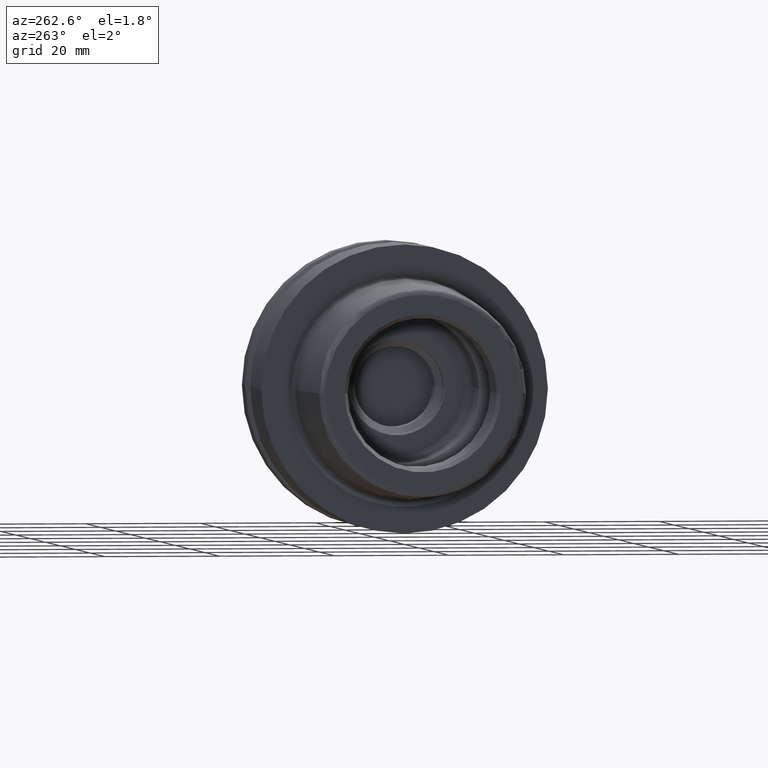
[diagram: clean part render]
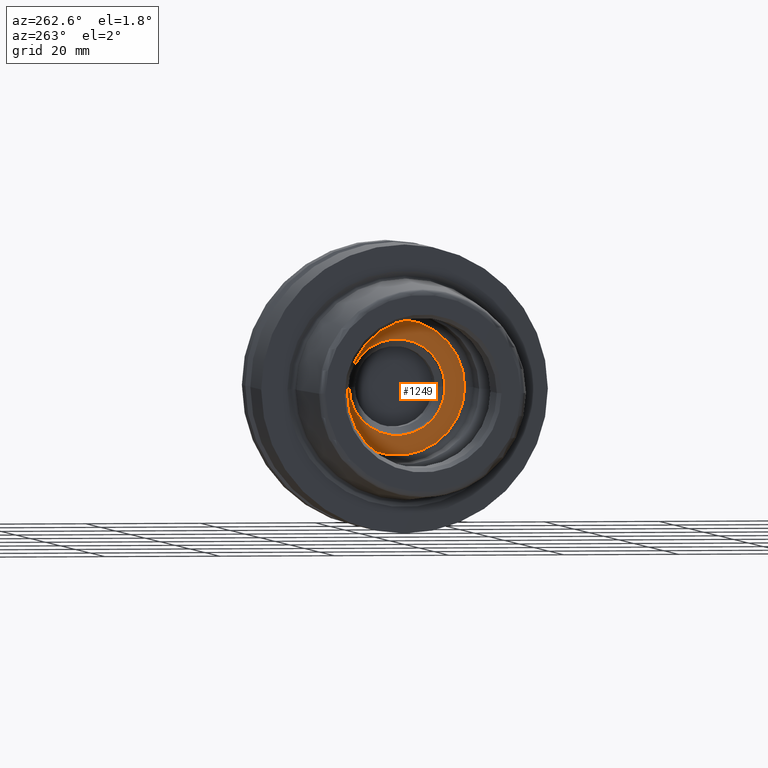
[diagram: same view with one face highlighted and labeled with its STEP entity id]
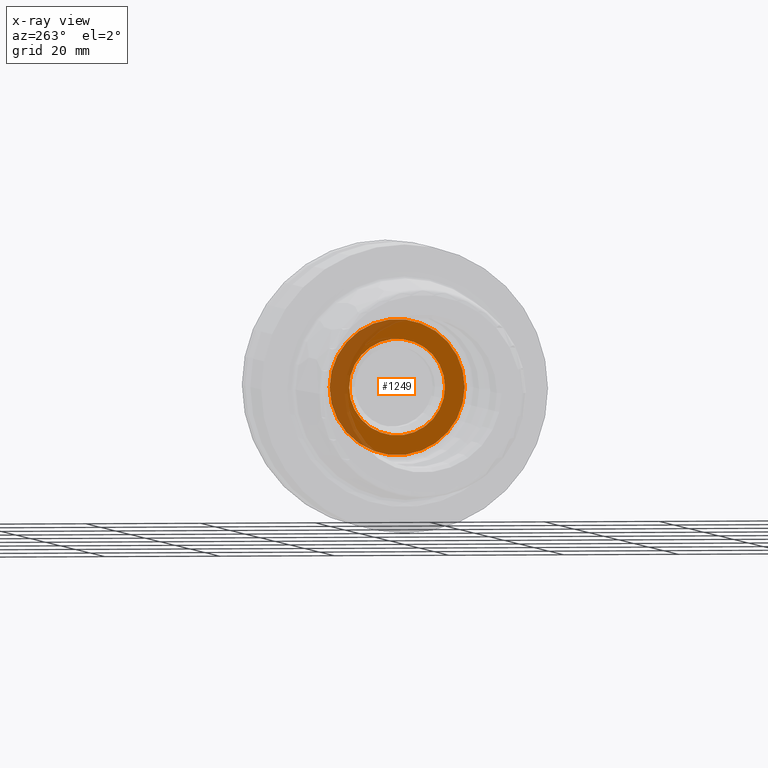
[diagram: x-ray of the same camera — body ghosted, the highlighted face saturated]
A machine part, auxiliary view. The second image highlights one B-rep face of the part: STEP entity #1249.
The next image is the same camera in x-ray: the body ghosted, the highlighted face saturated — about 31% of this face is hidden behind the body in this view.
In plain terms, the highlighted planar face has unit normal (1, 0, 0).
Its self-contained STEP definition (entity closure, byte-faithful):
#213=CARTESIAN_POINT('',(9.95E0,0.E0,0.E0));
#214=DIRECTION('',(-1.E0,0.E0,0.E0));
#215=DIRECTION('',(0.E0,1.E0,0.E0));
#216=AXIS2_PLACEMENT_3D('',#213,#214,#215);
#223=CARTESIAN_POINT('',(9.95E0,0.E0,0.E0));
#224=DIRECTION('',(1.E0,0.E0,0.E0));
#225=DIRECTION('',(0.E0,1.E0,0.E0));
#226=AXIS2_PLACEMENT_3D('',#223,#224,#225);
#228=CARTESIAN_POINT('',(9.95E0,0.E0,0.E0));
#229=DIRECTION('',(1.E0,0.E0,0.E0));
#230=DIRECTION('',(0.E0,1.E0,0.E0));
#231=AXIS2_PLACEMENT_3D('',#228,#229,#230);
#233=CARTESIAN_POINT('',(9.95E0,0.E0,3.398608382830E-14));
#234=DIRECTION('',(1.E0,0.E0,0.E0));
#235=DIRECTION('',(0.E0,-1.E0,0.E0));
#236=AXIS2_PLACEMENT_3D('',#233,#234,#235);
#768=CARTESIAN_POINT('',(9.95E0,1.1775E1,0.E0));
#770=VERTEX_POINT('',#768);
#772=CARTESIAN_POINT('',(9.95E0,-1.1775E1,0.E0));
#774=VERTEX_POINT('',#772);
#856=CARTESIAN_POINT('',(9.95E0,8.3625E0,0.E0));
#857=CARTESIAN_POINT('',(9.95E0,-8.3625E0,0.E0));
#858=VERTEX_POINT('',#856);
#859=VERTEX_POINT('',#857);
#1234=CARTESIAN_POINT('',(9.95E0,0.E0,0.E0));
#1235=DIRECTION('',(1.E0,0.E0,0.E0));
#1236=DIRECTION('',(0.E0,-1.E0,0.E0));
#1237=AXIS2_PLACEMENT_3D('',#1234,#1235,#1236);
#1238=PLANE('',#1237);
#1239=ORIENTED_EDGE('',*,*,#1229,.T.);
#1240=ORIENTED_EDGE('',*,*,#1213,.F.);
#1241=EDGE_LOOP('',(#1239,#1240));
#1242=FACE_OUTER_BOUND('',#1241,.F.);
#1244=ORIENTED_EDGE('',*,*,#1243,.F.);
#1246=ORIENTED_EDGE('',*,*,#1245,.F.);
#1247=EDGE_LOOP('',(#1244,#1246));
#1248=FACE_BOUND('',#1247,.F.);
#1249=ADVANCED_FACE('',(#1242,#1248),#1238,.F.);
#217=CIRCLE('',#216,1.1775E1);
#227=CIRCLE('',#226,1.1775E1);
#232=CIRCLE('',#231,8.3625E0);
#237=CIRCLE('',#236,8.3625E0);
#1213=EDGE_CURVE('',#770,#774,#217,.T.);
#1229=EDGE_CURVE('',#770,#774,#227,.T.);
#1243=EDGE_CURVE('',#858,#859,#232,.T.);
#1245=EDGE_CURVE('',#859,#858,#237,.T.);